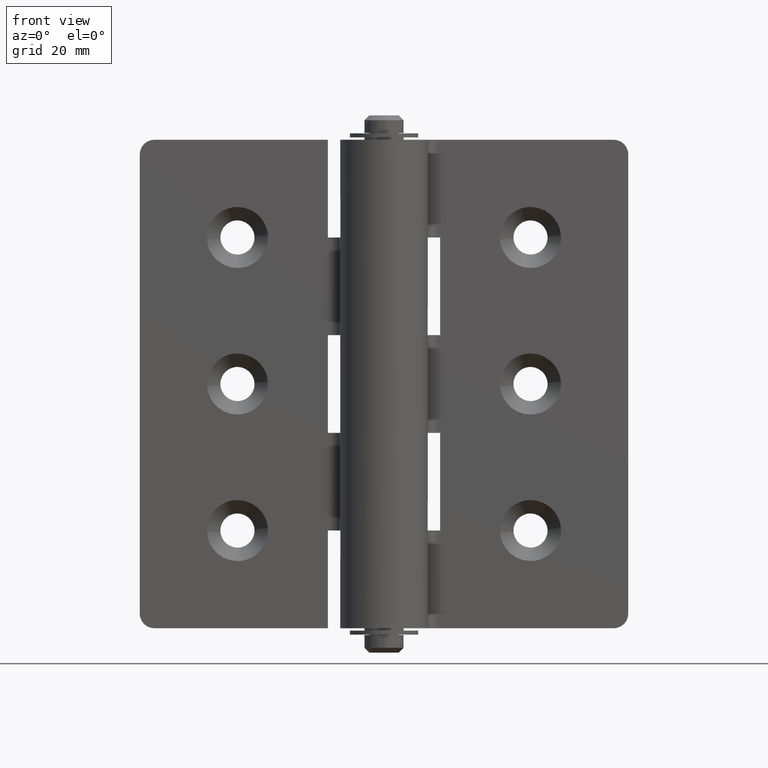
[diagram: clean part render]
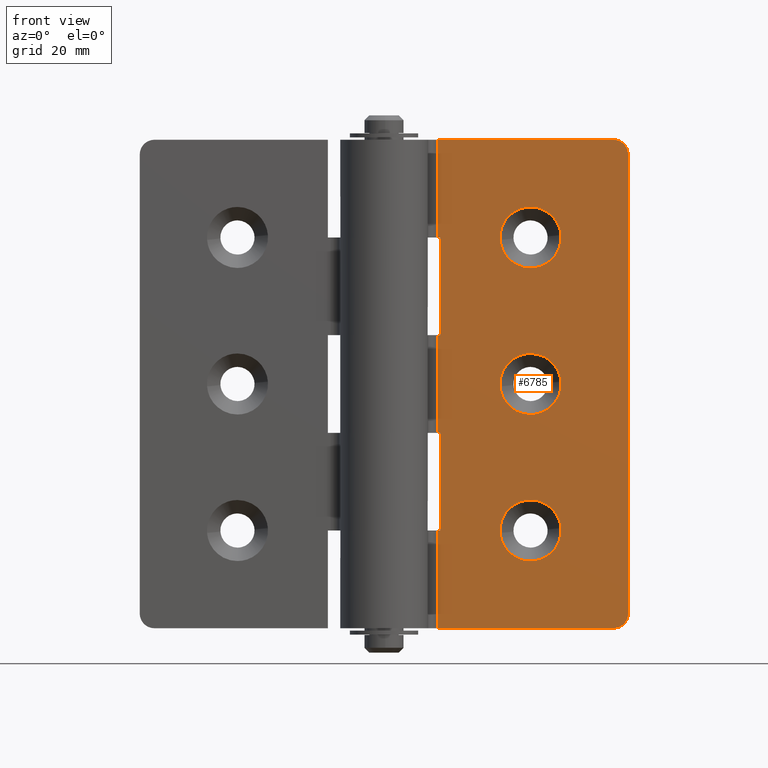
[diagram: same view with one face highlighted and labeled with its STEP entity id]
A machine part, front view. The second image highlights one B-rep face of the part: STEP entity #6785.
In plain terms, the highlighted face is a freeform B-spline surface patch.
Its self-contained STEP definition (entity closure, byte-faithful):
#5318=CARTESIAN_POINT('',(36.230733335835062,2.999999999992341,80.490369348358399));
#5319=VERTEX_POINT('',#5318);
#5325=CARTESIAN_POINT('',(30.0,3.0,86.250000000000014));
#5326=VERTEX_POINT('',#5325);
#5327=CARTESIAN_POINT('',(30.0,3.0,86.250000000000014));
#5328=CARTESIAN_POINT('',(35.777440572812957,2.999999999996172,86.250000000000341));
#5329=CARTESIAN_POINT('',(36.230733335835069,2.999999999992341,80.490369348358399));
#5337=(BOUNDED_CURVE()B_SPLINE_CURVE(2,(#5327,#5328,#5329),.UNSPECIFIED.,.F.,.U.)B_SPLINE_CURVE_WITH_KNOTS((3,3),(0.0,0.236331300631150),.UNSPECIFIED.)CURVE()GEOMETRIC_REPRESENTATION_ITEM()RATIONAL_B_SPLINE_CURVE((1.0,0.723120658607091,0.969723356168442))REPRESENTATION_ITEM(''));
#5338=EDGE_CURVE('',#5326,#5319,#5337,.T.);
#5340=CARTESIAN_POINT('',(23.769266664164942,2.999999999992340,79.509630651641601));
#5341=VERTEX_POINT('',#5340);
#5342=CARTESIAN_POINT('',(23.769266664164942,2.999999999992340,79.509630651641601));
#5343=CARTESIAN_POINT('',(23.749999999992507,2.999999999992480,79.754436831171958));
#5344=CARTESIAN_POINT('',(23.749999999992660,2.999999999992630,79.999999999999446));
#5345=CARTESIAN_POINT('',(23.749999999996476,2.999999999996460,86.249999999999730));
#5346=CARTESIAN_POINT('',(30.0,3.0,86.250000000000014));
#5354=(BOUNDED_CURVE()B_SPLINE_CURVE(2,(#5342,#5343,#5344,#5345,#5346),.UNSPECIFIED.,.F.,.U.)B_SPLINE_CURVE_WITH_KNOTS((3,2,3),(0.736331300631150,0.750000000000000,1.0),.UNSPECIFIED.)CURVE()GEOMETRIC_REPRESENTATION_ITEM()RATIONAL_B_SPLINE_CURVE((0.969723356168441,0.983986122579457,1.0,0.707106781186547,1.0))REPRESENTATION_ITEM(''));
#5355=EDGE_CURVE('',#5341,#5326,#5354,.T.);
#5391=CARTESIAN_POINT('',(30.0,3.0,73.750000000000000));
#5392=VERTEX_POINT('',#5391);
#5393=CARTESIAN_POINT('',(30.0,3.0,73.750000000000000));
#5394=CARTESIAN_POINT('',(24.222559427187051,2.999999999996171,73.749999999999702));
#5395=CARTESIAN_POINT('',(23.769266664164942,2.999999999992340,79.509630651641601));
#5403=(BOUNDED_CURVE()B_SPLINE_CURVE(2,(#5393,#5394,#5395),.UNSPECIFIED.,.F.,.U.)B_SPLINE_CURVE_WITH_KNOTS((3,3),(0.500000000000000,0.736331300631150),.UNSPECIFIED.)CURVE()GEOMETRIC_REPRESENTATION_ITEM()RATIONAL_B_SPLINE_CURVE((1.0,0.723120658607091,0.969723356168441))REPRESENTATION_ITEM(''));
#5404=EDGE_CURVE('',#5392,#5341,#5403,.T.);
#5406=CARTESIAN_POINT('',(36.230733335835062,2.999999999992341,80.490369348358399));
#5407=CARTESIAN_POINT('',(36.250000000007510,2.999999999992479,80.245563168828042));
#5408=CARTESIAN_POINT('',(36.250000000007347,2.999999999992630,80.000000000000568));
#5409=CARTESIAN_POINT('',(36.250000000003524,2.999999999996460,73.750000000000270));
#5410=CARTESIAN_POINT('',(30.0,3.0,73.750000000000000));
#5418=(BOUNDED_CURVE()B_SPLINE_CURVE(2,(#5406,#5407,#5408,#5409,#5410),.UNSPECIFIED.,.F.,.U.)B_SPLINE_CURVE_WITH_KNOTS((3,2,3),(0.236331300631150,0.250000000000000,0.500000000000000),.UNSPECIFIED.)CURVE()GEOMETRIC_REPRESENTATION_ITEM()RATIONAL_B_SPLINE_CURVE((0.969723356168442,0.983986122579457,1.0,0.707106781186547,1.0))REPRESENTATION_ITEM(''));
#5419=EDGE_CURVE('',#5319,#5392,#5418,.T.);
#5630=CARTESIAN_POINT('',(36.230733335835062,2.999999999992341,50.490369348358414));
#5631=VERTEX_POINT('',#5630);
#5637=CARTESIAN_POINT('',(30.0,3.0,56.250000000000000));
#5638=VERTEX_POINT('',#5637);
#5639=CARTESIAN_POINT('',(30.0,3.0,56.250000000000000));
#5640=CARTESIAN_POINT('',(35.777440572812942,2.999999999996171,56.250000000000298));
#5641=CARTESIAN_POINT('',(36.230733335835062,2.999999999992342,50.490369348358414));
#5649=(BOUNDED_CURVE()B_SPLINE_CURVE(2,(#5639,#5640,#5641),.UNSPECIFIED.,.F.,.U.)B_SPLINE_CURVE_WITH_KNOTS((3,3),(0.0,0.236331300631149),.UNSPECIFIED.)CURVE()GEOMETRIC_REPRESENTATION_ITEM()RATIONAL_B_SPLINE_CURVE((1.0,0.723120658607092,0.969723356168440))REPRESENTATION_ITEM(''));
#5650=EDGE_CURVE('',#5638,#5631,#5649,.T.);
#5652=CARTESIAN_POINT('',(23.769266664164942,2.999999999992340,49.509630651641586));
#5653=VERTEX_POINT('',#5652);
#5654=CARTESIAN_POINT('',(23.769266664164938,2.999999999992340,49.509630651641579));
#5655=CARTESIAN_POINT('',(23.749999999992500,2.999999999992479,49.754436831171951));
#5656=CARTESIAN_POINT('',(23.749999999992649,2.999999999992630,49.999999999999417));
#5657=CARTESIAN_POINT('',(23.749999999996461,2.999999999996460,56.249999999999709));
#5658=CARTESIAN_POINT('',(30.0,3.0,56.250000000000000));
#5666=(BOUNDED_CURVE()B_SPLINE_CURVE(2,(#5654,#5655,#5656,#5657,#5658),.UNSPECIFIED.,.F.,.U.)B_SPLINE_CURVE_WITH_KNOTS((3,2,3),(0.736331300631150,0.750000000000000,1.0),.UNSPECIFIED.)CURVE()GEOMETRIC_REPRESENTATION_ITEM()RATIONAL_B_SPLINE_CURVE((0.969723356168441,0.983986122579456,1.0,0.707106781186547,1.0))REPRESENTATION_ITEM(''));
#5667=EDGE_CURVE('',#5653,#5638,#5666,.T.);
#5703=CARTESIAN_POINT('',(30.0,3.0,43.750000000000007));
#5704=VERTEX_POINT('',#5703);
#5705=CARTESIAN_POINT('',(30.0,3.0,43.750000000000007));
#5706=CARTESIAN_POINT('',(24.222559427187054,2.999999999996170,43.749999999999709));
#5707=CARTESIAN_POINT('',(23.769266664164935,2.999999999992339,49.509630651641586));
#5715=(BOUNDED_CURVE()B_SPLINE_CURVE(2,(#5705,#5706,#5707),.UNSPECIFIED.,.F.,.U.)B_SPLINE_CURVE_WITH_KNOTS((3,3),(0.500000000000000,0.736331300631149),.UNSPECIFIED.)CURVE()GEOMETRIC_REPRESENTATION_ITEM()RATIONAL_B_SPLINE_CURVE((1.0,0.723120658607092,0.969723356168440))REPRESENTATION_ITEM(''));
#5716=EDGE_CURVE('',#5704,#5653,#5715,.T.);
#5718=CARTESIAN_POINT('',(36.230733335835062,2.999999999992342,50.490369348358414));
#5719=CARTESIAN_POINT('',(36.250000000007510,2.999999999992481,50.245563168828049));
#5720=CARTESIAN_POINT('',(36.250000000007347,2.999999999992631,50.000000000000583));
#5721=CARTESIAN_POINT('',(36.250000000003524,2.999999999996461,43.750000000000284));
#5722=CARTESIAN_POINT('',(30.0,3.0,43.750000000000007));
#5730=(BOUNDED_CURVE()B_SPLINE_CURVE(2,(#5718,#5719,#5720,#5721,#5722),.UNSPECIFIED.,.F.,.U.)B_SPLINE_CURVE_WITH_KNOTS((3,2,3),(0.236331300631150,0.250000000000000,0.500000000000000),.UNSPECIFIED.)CURVE()GEOMETRIC_REPRESENTATION_ITEM()RATIONAL_B_SPLINE_CURVE((0.969723356168440,0.983986122579456,1.0,0.707106781186547,1.0))REPRESENTATION_ITEM(''));
#5731=EDGE_CURVE('',#5631,#5704,#5730,.T.);
#5942=CARTESIAN_POINT('',(36.230733335835062,2.999999999992341,20.490369348358410));
#5943=VERTEX_POINT('',#5942);
#5949=CARTESIAN_POINT('',(30.0,3.0,26.250000000000000));
#5950=VERTEX_POINT('',#5949);
#5951=CARTESIAN_POINT('',(30.0,3.0,26.250000000000000));
#5952=CARTESIAN_POINT('',(35.777440572812928,2.999999999996171,26.250000000000306));
#5953=CARTESIAN_POINT('',(36.230733335835055,2.999999999992342,20.490369348358414));
#5961=(BOUNDED_CURVE()B_SPLINE_CURVE(2,(#5951,#5952,#5953),.UNSPECIFIED.,.F.,.U.)B_SPLINE_CURVE_WITH_KNOTS((3,3),(0.0,0.236331300631150),.UNSPECIFIED.)CURVE()GEOMETRIC_REPRESENTATION_ITEM()RATIONAL_B_SPLINE_CURVE((1.0,0.723120658607091,0.969723356168440))REPRESENTATION_ITEM(''));
#5962=EDGE_CURVE('',#5950,#5943,#5961,.T.);
#5964=CARTESIAN_POINT('',(23.769266664164942,2.999999999992340,19.509630651641590));
#5965=VERTEX_POINT('',#5964);
#5966=CARTESIAN_POINT('',(23.769266664164942,2.999999999992341,19.509630651641583));
#5967=CARTESIAN_POINT('',(23.749999999992500,2.999999999992479,19.754436831171947));
#5968=CARTESIAN_POINT('',(23.749999999992649,2.999999999992630,19.999999999999421));
#5969=CARTESIAN_POINT('',(23.749999999996476,2.999999999996460,26.249999999999716));
#5970=CARTESIAN_POINT('',(30.0,3.0,26.250000000000000));
#5978=(BOUNDED_CURVE()B_SPLINE_CURVE(2,(#5966,#5967,#5968,#5969,#5970),.UNSPECIFIED.,.F.,.U.)B_SPLINE_CURVE_WITH_KNOTS((3,2,3),(0.736331300631150,0.750000000000000,1.0),.UNSPECIFIED.)CURVE()GEOMETRIC_REPRESENTATION_ITEM()RATIONAL_B_SPLINE_CURVE((0.969723356168440,0.983986122579456,1.0,0.707106781186547,1.0))REPRESENTATION_ITEM(''));
#5979=EDGE_CURVE('',#5965,#5950,#5978,.T.);
#6015=CARTESIAN_POINT('',(30.0,3.0,13.750000000000000));
#6016=VERTEX_POINT('',#6015);
#6017=CARTESIAN_POINT('',(30.0,3.0,13.750000000000000));
#6018=CARTESIAN_POINT('',(24.222559427187058,2.999999999996170,13.749999999999698));
#6019=CARTESIAN_POINT('',(23.769266664164942,2.999999999992341,19.509630651641583));
#6027=(BOUNDED_CURVE()B_SPLINE_CURVE(2,(#6017,#6018,#6019),.UNSPECIFIED.,.F.,.U.)B_SPLINE_CURVE_WITH_KNOTS((3,3),(0.500000000000000,0.736331300631150),.UNSPECIFIED.)CURVE()GEOMETRIC_REPRESENTATION_ITEM()RATIONAL_B_SPLINE_CURVE((1.0,0.723120658607092,0.969723356168440))REPRESENTATION_ITEM(''));
#6028=EDGE_CURVE('',#6016,#5965,#6027,.T.);
#6030=CARTESIAN_POINT('',(36.230733335835055,2.999999999992342,20.490369348358414));
#6031=CARTESIAN_POINT('',(36.250000000007503,2.999999999992481,20.245563168828053));
#6032=CARTESIAN_POINT('',(36.250000000007340,2.999999999992631,20.000000000000579));
#6033=CARTESIAN_POINT('',(36.250000000003524,2.999999999996461,13.750000000000275));
#6034=CARTESIAN_POINT('',(30.0,3.0,13.750000000000000));
#6042=(BOUNDED_CURVE()B_SPLINE_CURVE(2,(#6030,#6031,#6032,#6033,#6034),.UNSPECIFIED.,.F.,.U.)B_SPLINE_CURVE_WITH_KNOTS((3,2,3),(0.236331300631150,0.250000000000000,0.500000000000000),.UNSPECIFIED.)CURVE()GEOMETRIC_REPRESENTATION_ITEM()RATIONAL_B_SPLINE_CURVE((0.969723356168440,0.983986122579456,1.0,0.707106781186547,1.0))REPRESENTATION_ITEM(''));
#6043=EDGE_CURVE('',#5943,#6016,#6042,.T.);
#6609=CARTESIAN_POINT('',(10.954451000000001,3.0,20.0));
#6610=VERTEX_POINT('',#6609);
#6611=CARTESIAN_POINT('',(10.954451000000001,3.0,0.0));
#6612=VERTEX_POINT('',#6611);
#6613=CARTESIAN_POINT('',(10.954451000000001,3.0,20.0));
#6614=CARTESIAN_POINT('',(10.954451000000001,3.0,0.0));
#6615=QUASI_UNIFORM_CURVE('',1,(#6613,#6614),.UNSPECIFIED.,.F.,.U.);
#6616=EDGE_CURVE('',#6610,#6612,#6615,.T.);
#6654=CARTESIAN_POINT('',(9.004125903127850,3.0,-4.994999806180597));
#6655=CARTESIAN_POINT('',(9.004125903127850,3.0,104.995002488389600));
#6656=CARTESIAN_POINT('',(51.950326144155383,3.0,-4.994999806180597));
#6657=CARTESIAN_POINT('',(51.950326144155383,3.0,104.995002488389600));
#6658=B_SPLINE_SURFACE_WITH_KNOTS('',1,1,((#6654,#6656),(#6655,#6657)),.UNSPECIFIED.,.F.,.F.,.U.,(2,2),(2,2),(0.0,109.990002294570200),(0.0,42.946200241027533),.UNSPECIFIED.);
#6659=CARTESIAN_POINT('',(11.499999999999799,3.0,80.0));
#6660=VERTEX_POINT('',#6659);
#6661=CARTESIAN_POINT('',(10.954451000000001,3.0,80.0));
#6662=VERTEX_POINT('',#6661);
#6663=CARTESIAN_POINT('',(11.499999999999799,3.0,80.0));
#6664=CARTESIAN_POINT('',(10.954451000000001,3.0,80.0));
#6665=QUASI_UNIFORM_CURVE('',1,(#6663,#6664),.UNSPECIFIED.,.F.,.U.);
#6666=EDGE_CURVE('',#6660,#6662,#6665,.T.);
#6667=ORIENTED_EDGE('',*,*,#6666,.F.);
#6668=CARTESIAN_POINT('',(11.499999999999799,3.0,60.0));
#6669=VERTEX_POINT('',#6668);
#6670=CARTESIAN_POINT('',(11.499999999999799,3.0,60.0));
#6671=CARTESIAN_POINT('',(11.499999999999799,3.0,80.0));
#6672=QUASI_UNIFORM_CURVE('',1,(#6670,#6671),.UNSPECIFIED.,.F.,.U.);
#6673=EDGE_CURVE('',#6669,#6660,#6672,.T.);
#6674=ORIENTED_EDGE('',*,*,#6673,.F.);
#6675=CARTESIAN_POINT('',(10.954451000000001,3.0,60.0));
#6676=VERTEX_POINT('',#6675);
#6677=CARTESIAN_POINT('',(10.954451000000001,3.0,60.0));
#6678=CARTESIAN_POINT('',(11.499999999999799,3.0,60.0));
#6679=QUASI_UNIFORM_CURVE('',1,(#6677,#6678),.UNSPECIFIED.,.F.,.U.);
#6680=EDGE_CURVE('',#6676,#6669,#6679,.T.);
#6681=ORIENTED_EDGE('',*,*,#6680,.F.);
#6682=CARTESIAN_POINT('',(10.954451000000001,3.0,40.0));
#6683=VERTEX_POINT('',#6682);
#6684=CARTESIAN_POINT('',(10.954451000000001,3.0,60.0));
#6685=CARTESIAN_POINT('',(10.954451000000001,3.0,40.0));
#6686=QUASI_UNIFORM_CURVE('',1,(#6684,#6685),.UNSPECIFIED.,.F.,.U.);
#6687=EDGE_CURVE('',#6676,#6683,#6686,.T.);
#6688=ORIENTED_EDGE('',*,*,#6687,.T.);
#6689=CARTESIAN_POINT('',(11.499999999999799,3.0,40.0));
#6690=VERTEX_POINT('',#6689);
#6691=CARTESIAN_POINT('',(10.954451000000001,3.0,40.0));
#6692=CARTESIAN_POINT('',(11.499999999999799,3.0,40.0));
#6693=QUASI_UNIFORM_CURVE('',1,(#6691,#6692),.UNSPECIFIED.,.F.,.U.);
#6694=EDGE_CURVE('',#6683,#6690,#6693,.T.);
#6695=ORIENTED_EDGE('',*,*,#6694,.T.);
#6696=CARTESIAN_POINT('',(11.499999999999799,3.0,20.0));
#6697=VERTEX_POINT('',#6696);
#6698=CARTESIAN_POINT('',(11.499999999999799,3.0,40.0));
#6699=CARTESIAN_POINT('',(11.499999999999799,3.0,20.0));
#6700=QUASI_UNIFORM_CURVE('',1,(#6698,#6699),.UNSPECIFIED.,.F.,.U.);
#6701=EDGE_CURVE('',#6690,#6697,#6700,.T.);
#6702=ORIENTED_EDGE('',*,*,#6701,.T.);
#6703=CARTESIAN_POINT('',(11.499999999999799,3.0,20.0));
#6704=CARTESIAN_POINT('',(10.954451000000001,3.0,20.0));
#6705=QUASI_UNIFORM_CURVE('',1,(#6703,#6704),.UNSPECIFIED.,.F.,.U.);
#6706=EDGE_CURVE('',#6697,#6610,#6705,.T.);
#6707=ORIENTED_EDGE('',*,*,#6706,.T.);
#6708=ORIENTED_EDGE('',*,*,#6616,.T.);
#6709=CARTESIAN_POINT('',(47.0,3.0,0.0));
#6710=VERTEX_POINT('',#6709);
#6711=CARTESIAN_POINT('',(10.954451000000001,3.0,0.0));
#6712=CARTESIAN_POINT('',(47.0,3.0,0.0));
#6713=QUASI_UNIFORM_CURVE('',1,(#6711,#6712),.UNSPECIFIED.,.F.,.U.);
#6714=EDGE_CURVE('',#6612,#6710,#6713,.T.);
#6715=ORIENTED_EDGE('',*,*,#6714,.T.);
#6716=CARTESIAN_POINT('',(50.0,3.0,3.0));
#6717=VERTEX_POINT('',#6716);
#6718=CARTESIAN_POINT('',(47.0,3.0,0.0));
#6719=CARTESIAN_POINT('',(50.0,3.0,0.0));
#6720=CARTESIAN_POINT('',(50.0,3.0,3.0));
#6728=(BOUNDED_CURVE()B_SPLINE_CURVE(2,(#6718,#6719,#6720),.UNSPECIFIED.,.F.,.U.)CURVE()GEOMETRIC_REPRESENTATION_ITEM()QUASI_UNIFORM_CURVE()RATIONAL_B_SPLINE_CURVE((1.0,0.707106781186548,1.0))REPRESENTATION_ITEM(''));
#6729=EDGE_CURVE('',#6710,#6717,#6728,.T.);
#6730=ORIENTED_EDGE('',*,*,#6729,.T.);
#6731=CARTESIAN_POINT('',(50.0,3.0,97.0));
#6732=VERTEX_POINT('',#6731);
#6733=CARTESIAN_POINT('',(50.0,3.0,97.0));
#6734=CARTESIAN_POINT('',(50.0,3.0,3.0));
#6735=QUASI_UNIFORM_CURVE('',1,(#6733,#6734),.UNSPECIFIED.,.F.,.U.);
#6736=EDGE_CURVE('',#6732,#6717,#6735,.T.);
#6737=ORIENTED_EDGE('',*,*,#6736,.F.);
#6738=CARTESIAN_POINT('',(47.0,3.0,100.0));
#6739=VERTEX_POINT('',#6738);
#6740=CARTESIAN_POINT('',(50.0,3.0,97.0));
#6741=CARTESIAN_POINT('',(50.0,3.0,100.0));
#6742=CARTESIAN_POINT('',(47.0,3.0,100.0));
#6750=(BOUNDED_CURVE()B_SPLINE_CURVE(2,(#6740,#6741,#6742),.UNSPECIFIED.,.F.,.U.)CURVE()GEOMETRIC_REPRESENTATION_ITEM()QUASI_UNIFORM_CURVE()RATIONAL_B_SPLINE_CURVE((1.0,0.707106781186548,1.0))REPRESENTATION_ITEM(''));
#6751=EDGE_CURVE('',#6732,#6739,#6750,.T.);
#6752=ORIENTED_EDGE('',*,*,#6751,.T.);
#6753=CARTESIAN_POINT('',(10.954451000000001,3.0,100.0));
#6754=VERTEX_POINT('',#6753);
#6755=CARTESIAN_POINT('',(10.954451000000001,3.0,100.0));
#6756=CARTESIAN_POINT('',(47.0,3.0,100.0));
#6757=QUASI_UNIFORM_CURVE('',1,(#6755,#6756),.UNSPECIFIED.,.F.,.U.);
#6758=EDGE_CURVE('',#6754,#6739,#6757,.T.);
#6759=ORIENTED_EDGE('',*,*,#6758,.F.);
#6760=CARTESIAN_POINT('',(10.954451000000001,3.0,100.0));
#6761=CARTESIAN_POINT('',(10.954451000000001,3.0,80.0));
#6762=QUASI_UNIFORM_CURVE('',1,(#6760,#6761),.UNSPECIFIED.,.F.,.U.);
#6763=EDGE_CURVE('',#6754,#6662,#6762,.T.);
#6764=ORIENTED_EDGE('',*,*,#6763,.T.);
#6765=EDGE_LOOP('',(#6667,#6674,#6681,#6688,#6695,#6702,#6707,#6708,#6715,#6730,#6737,#6752,#6759,#6764));
#6766=FACE_OUTER_BOUND('',#6765,.T.);
#6767=ORIENTED_EDGE('',*,*,#6028,.T.);
#6768=ORIENTED_EDGE('',*,*,#5979,.T.);
#6769=ORIENTED_EDGE('',*,*,#5962,.T.);
#6770=ORIENTED_EDGE('',*,*,#6043,.T.);
#6771=EDGE_LOOP('',(#6767,#6768,#6769,#6770));
#6772=FACE_BOUND('',#6771,.T.);
#6773=ORIENTED_EDGE('',*,*,#5716,.T.);
#6774=ORIENTED_EDGE('',*,*,#5667,.T.);
#6775=ORIENTED_EDGE('',*,*,#5650,.T.);
#6776=ORIENTED_EDGE('',*,*,#5731,.T.);
#6777=EDGE_LOOP('',(#6773,#6774,#6775,#6776));
#6778=FACE_BOUND('',#6777,.T.);
#6779=ORIENTED_EDGE('',*,*,#5404,.T.);
#6780=ORIENTED_EDGE('',*,*,#5355,.T.);
#6781=ORIENTED_EDGE('',*,*,#5338,.T.);
#6782=ORIENTED_EDGE('',*,*,#5419,.T.);
#6783=EDGE_LOOP('',(#6779,#6780,#6781,#6782));
#6784=FACE_BOUND('',#6783,.T.);
#6785=ADVANCED_FACE('',(#6766,#6772,#6778,#6784),#6658,.F.);